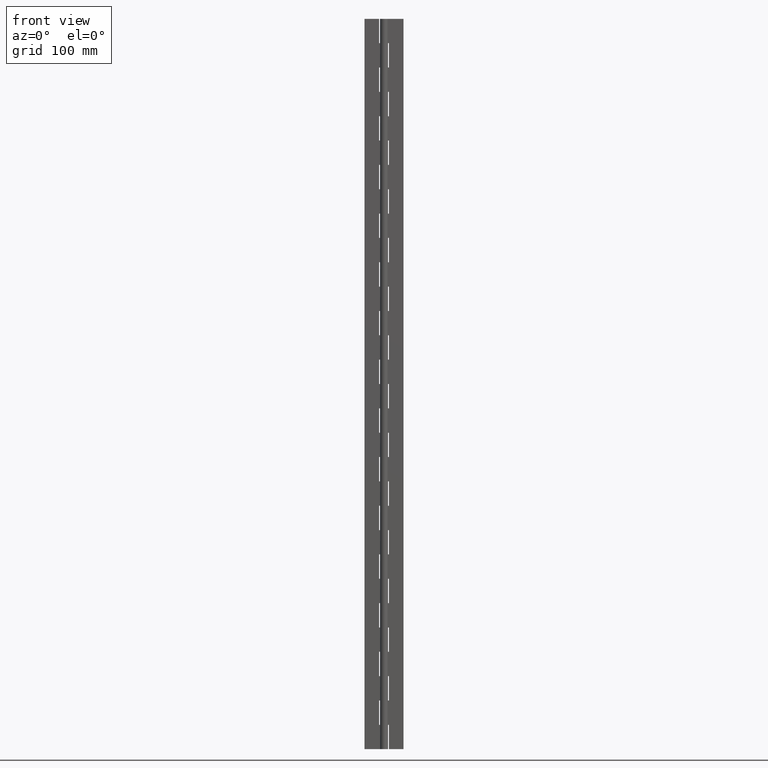
[diagram: clean part render]
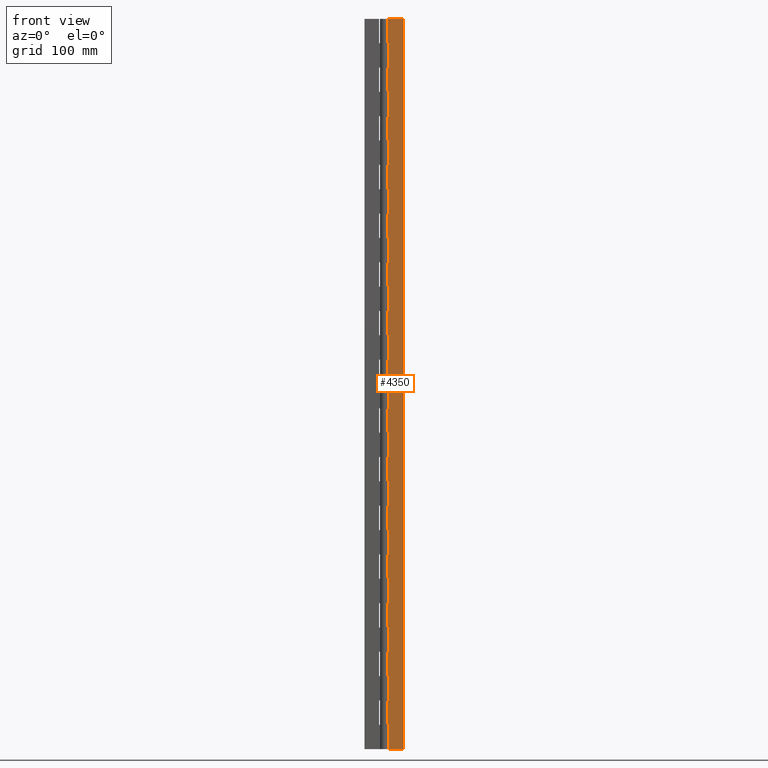
[diagram: same view with one face highlighted and labeled with its STEP entity id]
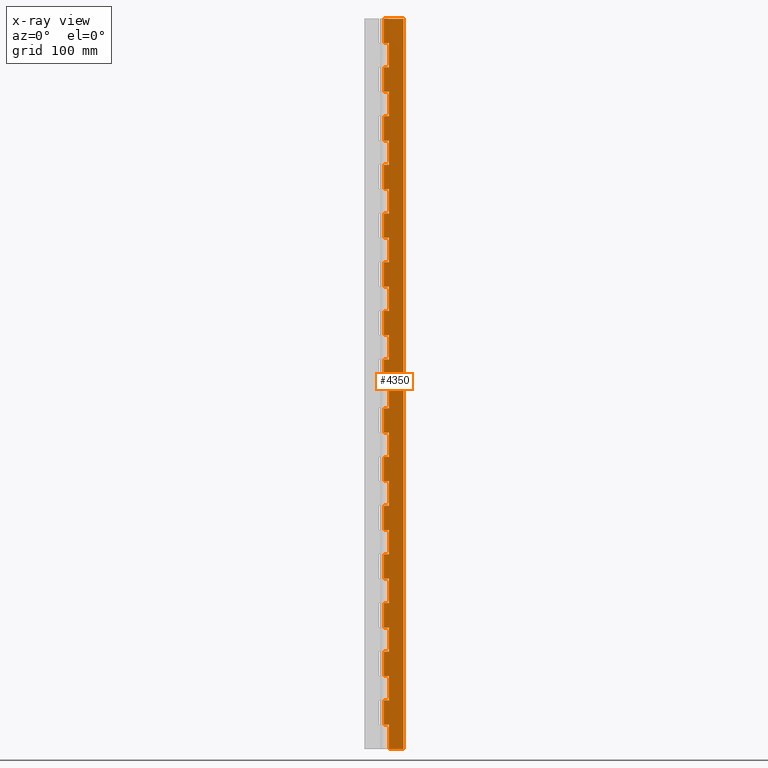
[diagram: x-ray of the same camera — body ghosted, the highlighted face saturated]
A machine part, front view. The second image highlights one B-rep face of the part: STEP entity #4350.
The next image is the same camera in x-ray: the body ghosted, the highlighted face saturated — about 0% of this face is hidden behind the body in this view.
In plain terms, the highlighted face is a freeform B-spline surface patch.
Its self-contained STEP definition (entity closure, byte-faithful):
#300=CARTESIAN_POINT('',(4.0,1.750000000000140,20.000021999999952));
#301=VERTEX_POINT('',#300);
#316=CARTESIAN_POINT('',(4.0,1.750000000000115,0.0));
#317=VERTEX_POINT('',#316);
#323=CARTESIAN_POINT('',(4.0,1.750000000000140,20.000021999999952));
#324=CARTESIAN_POINT('',(4.0,1.750000000000115,0.0));
#325=QUASI_UNIFORM_CURVE('',1,(#323,#324),.UNSPECIFIED.,.F.,.U.);
#326=EDGE_CURVE('',#301,#317,#325,.T.);
#338=CARTESIAN_POINT('',(-2.143061E-016,1.750000000000000,20.000021999999952));
#339=VERTEX_POINT('',#338);
#393=CARTESIAN_POINT('',(-2.143061E-016,1.750000000000000,20.000021999999952));
#394=CARTESIAN_POINT('',(4.0,1.750000000000140,20.000021999999952));
#395=QUASI_UNIFORM_CURVE('',1,(#393,#394),.UNSPECIFIED.,.F.,.U.);
#396=EDGE_CURVE('',#339,#301,#395,.T.);
#406=CARTESIAN_POINT('',(4.0,1.750000000000140,60.000022000000001));
#407=VERTEX_POINT('',#406);
#422=CARTESIAN_POINT('',(4.0,1.750000000000140,40.000022000000101));
#423=VERTEX_POINT('',#422);
#429=CARTESIAN_POINT('',(4.0,1.750000000000140,60.000022000000001));
#430=CARTESIAN_POINT('',(4.0,1.750000000000140,40.000022000000101));
#431=QUASI_UNIFORM_CURVE('',1,(#429,#430),.UNSPECIFIED.,.F.,.U.);
#432=EDGE_CURVE('',#407,#423,#431,.T.);
#444=CARTESIAN_POINT('',(-2.143061E-016,1.750000000000000,60.000022000000001));
#445=VERTEX_POINT('',#444);
#499=CARTESIAN_POINT('',(-2.143061E-016,1.750000000000000,60.000022000000001));
#500=CARTESIAN_POINT('',(4.0,1.750000000000140,60.000022000000001));
#501=QUASI_UNIFORM_CURVE('',1,(#499,#500),.UNSPECIFIED.,.F.,.U.);
#502=EDGE_CURVE('',#445,#407,#501,.T.);
#548=CARTESIAN_POINT('',(-2.143061E-016,1.750000000000000,40.000022000000101));
#549=VERTEX_POINT('',#548);
#569=CARTESIAN_POINT('',(4.0,1.750000000000140,40.000022000000101));
#570=CARTESIAN_POINT('',(-2.143061E-016,1.750000000000000,40.000022000000101));
#571=QUASI_UNIFORM_CURVE('',1,(#569,#570),.UNSPECIFIED.,.F.,.U.);
#572=EDGE_CURVE('',#423,#549,#571,.T.);
#582=CARTESIAN_POINT('',(4.0,1.750000000000140,100.000022000000000));
#583=VERTEX_POINT('',#582);
#598=CARTESIAN_POINT('',(4.0,1.750000000000140,80.000022000000101));
#599=VERTEX_POINT('',#598);
#605=CARTESIAN_POINT('',(4.0,1.750000000000140,100.000022000000000));
#606=CARTESIAN_POINT('',(4.0,1.750000000000140,80.000022000000101));
#607=QUASI_UNIFORM_CURVE('',1,(#605,#606),.UNSPECIFIED.,.F.,.U.);
#608=EDGE_CURVE('',#583,#599,#607,.T.);
#620=CARTESIAN_POINT('',(-2.143061E-016,1.750000000000000,100.000022000000000));
#621=VERTEX_POINT('',#620);
#675=CARTESIAN_POINT('',(-2.143061E-016,1.750000000000000,100.000022000000000));
#676=CARTESIAN_POINT('',(4.0,1.750000000000140,100.000022000000000));
#677=QUASI_UNIFORM_CURVE('',1,(#675,#676),.UNSPECIFIED.,.F.,.U.);
#678=EDGE_CURVE('',#621,#583,#677,.T.);
#724=CARTESIAN_POINT('',(-2.143061E-016,1.750000000000000,80.000022000000101));
#725=VERTEX_POINT('',#724);
#745=CARTESIAN_POINT('',(4.0,1.750000000000140,80.000022000000101));
#746=CARTESIAN_POINT('',(-2.143061E-016,1.750000000000000,80.000022000000101));
#747=QUASI_UNIFORM_CURVE('',1,(#745,#746),.UNSPECIFIED.,.F.,.U.);
#748=EDGE_CURVE('',#599,#725,#747,.T.);
#758=CARTESIAN_POINT('',(4.0,1.750000000000140,140.000022000000000));
#759=VERTEX_POINT('',#758);
#774=CARTESIAN_POINT('',(4.0,1.750000000000140,120.000022000000000));
#775=VERTEX_POINT('',#774);
#781=CARTESIAN_POINT('',(4.0,1.750000000000140,140.000022000000000));
#782=CARTESIAN_POINT('',(4.0,1.750000000000140,120.000022000000000));
#783=QUASI_UNIFORM_CURVE('',1,(#781,#782),.UNSPECIFIED.,.F.,.U.);
#784=EDGE_CURVE('',#759,#775,#783,.T.);
#796=CARTESIAN_POINT('',(-2.143061E-016,1.750000000000000,140.000022000000000));
#797=VERTEX_POINT('',#796);
#851=CARTESIAN_POINT('',(-2.143061E-016,1.750000000000000,140.000022000000000));
#852=CARTESIAN_POINT('',(4.0,1.750000000000140,140.000022000000000));
#853=QUASI_UNIFORM_CURVE('',1,(#851,#852),.UNSPECIFIED.,.F.,.U.);
#854=EDGE_CURVE('',#797,#759,#853,.T.);
#900=CARTESIAN_POINT('',(-2.143061E-016,1.750000000000000,120.000022000000200));
#901=VERTEX_POINT('',#900);
#921=CARTESIAN_POINT('',(4.0,1.750000000000140,120.000022000000000));
#922=CARTESIAN_POINT('',(-2.143061E-016,1.750000000000000,120.000022000000200));
#923=QUASI_UNIFORM_CURVE('',1,(#921,#922),.UNSPECIFIED.,.F.,.U.);
#924=EDGE_CURVE('',#775,#901,#923,.T.);
#934=CARTESIAN_POINT('',(4.0,1.750000000000140,180.000022000000000));
#935=VERTEX_POINT('',#934);
#950=CARTESIAN_POINT('',(4.0,1.750000000000140,160.000022000000000));
#951=VERTEX_POINT('',#950);
#957=CARTESIAN_POINT('',(4.0,1.750000000000140,180.000022000000000));
#958=CARTESIAN_POINT('',(4.0,1.750000000000140,160.000022000000000));
#959=QUASI_UNIFORM_CURVE('',1,(#957,#958),.UNSPECIFIED.,.F.,.U.);
#960=EDGE_CURVE('',#935,#951,#959,.T.);
#972=CARTESIAN_POINT('',(-2.143061E-016,1.750000000000000,180.000022000000000));
#973=VERTEX_POINT('',#972);
#1027=CARTESIAN_POINT('',(-2.143061E-016,1.750000000000000,180.000022000000000));
#1028=CARTESIAN_POINT('',(4.0,1.750000000000140,180.000022000000000));
#1029=QUASI_UNIFORM_CURVE('',1,(#1027,#1028),.UNSPECIFIED.,.F.,.U.);
#1030=EDGE_CURVE('',#973,#935,#1029,.T.);
#1076=CARTESIAN_POINT('',(-2.143061E-016,1.750000000000000,160.000022000000000));
#1077=VERTEX_POINT('',#1076);
#1097=CARTESIAN_POINT('',(4.0,1.750000000000140,160.000022000000000));
#1098=CARTESIAN_POINT('',(-2.143061E-016,1.750000000000000,160.000022000000000));
#1099=QUASI_UNIFORM_CURVE('',1,(#1097,#1098),.UNSPECIFIED.,.F.,.U.);
#1100=EDGE_CURVE('',#951,#1077,#1099,.T.);
#1110=CARTESIAN_POINT('',(4.0,1.750000000000140,220.000022000000000));
#1111=VERTEX_POINT('',#1110);
#1126=CARTESIAN_POINT('',(4.0,1.750000000000140,200.000022000000000));
#1127=VERTEX_POINT('',#1126);
#1133=CARTESIAN_POINT('',(4.0,1.750000000000140,220.000022000000000));
#1134=CARTESIAN_POINT('',(4.0,1.750000000000140,200.000022000000000));
#1135=QUASI_UNIFORM_CURVE('',1,(#1133,#1134),.UNSPECIFIED.,.F.,.U.);
#1136=EDGE_CURVE('',#1111,#1127,#1135,.T.);
#1148=CARTESIAN_POINT('',(-2.143061E-016,1.750000000000000,220.000022000000000));
#1149=VERTEX_POINT('',#1148);
#1203=CARTESIAN_POINT('',(-2.143061E-016,1.750000000000000,220.000022000000000));
#1204=CARTESIAN_POINT('',(4.0,1.750000000000140,220.000022000000000));
#1205=QUASI_UNIFORM_CURVE('',1,(#1203,#1204),.UNSPECIFIED.,.F.,.U.);
#1206=EDGE_CURVE('',#1149,#1111,#1205,.T.);
#1252=CARTESIAN_POINT('',(-2.143061E-016,1.750000000000000,200.000022000000000));
#1253=VERTEX_POINT('',#1252);
#1273=CARTESIAN_POINT('',(4.0,1.750000000000140,200.000022000000000));
#1274=CARTESIAN_POINT('',(-2.143061E-016,1.750000000000000,200.000022000000000));
#1275=QUASI_UNIFORM_CURVE('',1,(#1273,#1274),.UNSPECIFIED.,.F.,.U.);
#1276=EDGE_CURVE('',#1127,#1253,#1275,.T.);
#1286=CARTESIAN_POINT('',(4.0,1.750000000000140,260.000022000000000));
#1287=VERTEX_POINT('',#1286);
#1302=CARTESIAN_POINT('',(4.0,1.750000000000140,240.000022000000000));
#1303=VERTEX_POINT('',#1302);
#1309=CARTESIAN_POINT('',(4.0,1.750000000000140,260.000022000000000));
#1310=CARTESIAN_POINT('',(4.0,1.750000000000140,240.000022000000000));
#1311=QUASI_UNIFORM_CURVE('',1,(#1309,#1310),.UNSPECIFIED.,.F.,.U.);
#1312=EDGE_CURVE('',#1287,#1303,#1311,.T.);
#1324=CARTESIAN_POINT('',(-2.143061E-016,1.750000000000000,260.000022000000000));
#1325=VERTEX_POINT('',#1324);
#1379=CARTESIAN_POINT('',(-2.143061E-016,1.750000000000000,260.000022000000000));
#1380=CARTESIAN_POINT('',(4.0,1.750000000000140,260.000022000000000));
#1381=QUASI_UNIFORM_CURVE('',1,(#1379,#1380),.UNSPECIFIED.,.F.,.U.);
#1382=EDGE_CURVE('',#1325,#1287,#1381,.T.);
#1428=CARTESIAN_POINT('',(-2.143061E-016,1.750000000000000,240.000022000000000));
#1429=VERTEX_POINT('',#1428);
#1449=CARTESIAN_POINT('',(4.0,1.750000000000140,240.000022000000000));
#1450=CARTESIAN_POINT('',(-2.143061E-016,1.750000000000000,240.000022000000000));
#1451=QUASI_UNIFORM_CURVE('',1,(#1449,#1450),.UNSPECIFIED.,.F.,.U.);
#1452=EDGE_CURVE('',#1303,#1429,#1451,.T.);
#1462=CARTESIAN_POINT('',(4.0,1.750000000000140,300.000022000000000));
#1463=VERTEX_POINT('',#1462);
#1478=CARTESIAN_POINT('',(4.0,1.750000000000140,280.000022000000000));
#1479=VERTEX_POINT('',#1478);
#1485=CARTESIAN_POINT('',(4.0,1.750000000000140,300.000022000000000));
#1486=CARTESIAN_POINT('',(4.0,1.750000000000140,280.000022000000000));
#1487=QUASI_UNIFORM_CURVE('',1,(#1485,#1486),.UNSPECIFIED.,.F.,.U.);
#1488=EDGE_CURVE('',#1463,#1479,#1487,.T.);
#1500=CARTESIAN_POINT('',(-2.143061E-016,1.750000000000000,300.000022000000000));
#1501=VERTEX_POINT('',#1500);
#1555=CARTESIAN_POINT('',(-2.143061E-016,1.750000000000000,300.000022000000000));
#1556=CARTESIAN_POINT('',(4.0,1.750000000000140,300.000022000000000));
#1557=QUASI_UNIFORM_CURVE('',1,(#1555,#1556),.UNSPECIFIED.,.F.,.U.);
#1558=EDGE_CURVE('',#1501,#1463,#1557,.T.);
#1604=CARTESIAN_POINT('',(-2.143061E-016,1.750000000000000,280.000022000000000));
#1605=VERTEX_POINT('',#1604);
#1625=CARTESIAN_POINT('',(4.0,1.750000000000140,280.000022000000000));
#1626=CARTESIAN_POINT('',(-2.143061E-016,1.750000000000000,280.000022000000000));
#1627=QUASI_UNIFORM_CURVE('',1,(#1625,#1626),.UNSPECIFIED.,.F.,.U.);
#1628=EDGE_CURVE('',#1479,#1605,#1627,.T.);
#1638=CARTESIAN_POINT('',(4.0,1.750000000000140,340.000022000000000));
#1639=VERTEX_POINT('',#1638);
#1654=CARTESIAN_POINT('',(4.0,1.750000000000140,320.000022000000000));
#1655=VERTEX_POINT('',#1654);
#1661=CARTESIAN_POINT('',(4.0,1.750000000000140,340.000022000000000));
#1662=CARTESIAN_POINT('',(4.0,1.750000000000140,320.000022000000000));
#1663=QUASI_UNIFORM_CURVE('',1,(#1661,#1662),.UNSPECIFIED.,.F.,.U.);
#1664=EDGE_CURVE('',#1639,#1655,#1663,.T.);
#1676=CARTESIAN_POINT('',(-2.143061E-016,1.750000000000000,340.000022000000000));
#1677=VERTEX_POINT('',#1676);
#1731=CARTESIAN_POINT('',(-2.143061E-016,1.750000000000000,340.000022000000000));
#1732=CARTESIAN_POINT('',(4.0,1.750000000000140,340.000022000000000));
#1733=QUASI_UNIFORM_CURVE('',1,(#1731,#1732),.UNSPECIFIED.,.F.,.U.);
#1734=EDGE_CURVE('',#1677,#1639,#1733,.T.);
#1780=CARTESIAN_POINT('',(-2.143061E-016,1.750000000000000,320.000022000000000));
#1781=VERTEX_POINT('',#1780);
#1801=CARTESIAN_POINT('',(4.0,1.750000000000140,320.000022000000000));
#1802=CARTESIAN_POINT('',(-2.143061E-016,1.750000000000000,320.000022000000000));
#1803=QUASI_UNIFORM_CURVE('',1,(#1801,#1802),.UNSPECIFIED.,.F.,.U.);
#1804=EDGE_CURVE('',#1655,#1781,#1803,.T.);
#1814=CARTESIAN_POINT('',(4.0,1.750000000000140,380.000022000000000));
#1815=VERTEX_POINT('',#1814);
#1830=CARTESIAN_POINT('',(4.0,1.750000000000140,360.000022000000000));
#1831=VERTEX_POINT('',#1830);
#1837=CARTESIAN_POINT('',(4.0,1.750000000000140,380.000022000000000));
#1838=CARTESIAN_POINT('',(4.0,1.750000000000140,360.000022000000000));
#1839=QUASI_UNIFORM_CURVE('',1,(#1837,#1838),.UNSPECIFIED.,.F.,.U.);
#1840=EDGE_CURVE('',#1815,#1831,#1839,.T.);
#1852=CARTESIAN_POINT('',(-2.143061E-016,1.750000000000000,380.000022000000000));
#1853=VERTEX_POINT('',#1852);
#1907=CARTESIAN_POINT('',(-2.143061E-016,1.750000000000000,380.000022000000000));
#1908=CARTESIAN_POINT('',(4.0,1.750000000000140,380.000022000000000));
#1909=QUASI_UNIFORM_CURVE('',1,(#1907,#1908),.UNSPECIFIED.,.F.,.U.);
#1910=EDGE_CURVE('',#1853,#1815,#1909,.T.);
#1956=CARTESIAN_POINT('',(-2.143061E-016,1.750000000000000,360.000022000000000));
#1957=VERTEX_POINT('',#1956);
#1977=CARTESIAN_POINT('',(4.0,1.750000000000140,360.000022000000000));
#1978=CARTESIAN_POINT('',(-2.143061E-016,1.750000000000000,360.000022000000000));
#1979=QUASI_UNIFORM_CURVE('',1,(#1977,#1978),.UNSPECIFIED.,.F.,.U.);
#1980=EDGE_CURVE('',#1831,#1957,#1979,.T.);
#1990=CARTESIAN_POINT('',(4.0,1.750000000000140,420.000021999999890));
#1991=VERTEX_POINT('',#1990);
#2006=CARTESIAN_POINT('',(4.0,1.750000000000140,400.000022000000000));
#2007=VERTEX_POINT('',#2006);
#2013=CARTESIAN_POINT('',(4.0,1.750000000000140,420.000021999999890));
#2014=CARTESIAN_POINT('',(4.0,1.750000000000140,400.000022000000000));
#2015=QUASI_UNIFORM_CURVE('',1,(#2013,#2014),.UNSPECIFIED.,.F.,.U.);
#2016=EDGE_CURVE('',#1991,#2007,#2015,.T.);
#2028=CARTESIAN_POINT('',(-2.143061E-016,1.750000000000000,420.000021999999890));
#2029=VERTEX_POINT('',#2028);
#2083=CARTESIAN_POINT('',(-2.143061E-016,1.750000000000000,420.000021999999890));
#2084=CARTESIAN_POINT('',(4.0,1.750000000000140,420.000021999999890));
#2085=QUASI_UNIFORM_CURVE('',1,(#2083,#2084),.UNSPECIFIED.,.F.,.U.);
#2086=EDGE_CURVE('',#2029,#1991,#2085,.T.);
#2132=CARTESIAN_POINT('',(-2.143061E-016,1.750000000000000,400.000022000000000));
#2133=VERTEX_POINT('',#2132);
#2153=CARTESIAN_POINT('',(4.0,1.750000000000140,400.000022000000000));
#2154=CARTESIAN_POINT('',(-2.143061E-016,1.750000000000000,400.000022000000000));
#2155=QUASI_UNIFORM_CURVE('',1,(#2153,#2154),.UNSPECIFIED.,.F.,.U.);
#2156=EDGE_CURVE('',#2007,#2133,#2155,.T.);
#2166=CARTESIAN_POINT('',(4.0,1.750000000000140,460.000022000000000));
#2167=VERTEX_POINT('',#2166);
#2182=CARTESIAN_POINT('',(4.0,1.750000000000140,440.000022000000000));
#2183=VERTEX_POINT('',#2182);
#2189=CARTESIAN_POINT('',(4.0,1.750000000000140,460.000022000000000));
#2190=CARTESIAN_POINT('',(4.0,1.750000000000140,440.000022000000000));
#2191=QUASI_UNIFORM_CURVE('',1,(#2189,#2190),.UNSPECIFIED.,.F.,.U.);
#2192=EDGE_CURVE('',#2167,#2183,#2191,.T.);
#2204=CARTESIAN_POINT('',(-2.143061E-016,1.750000000000000,460.000022000000000));
#2205=VERTEX_POINT('',#2204);
#2259=CARTESIAN_POINT('',(-2.143061E-016,1.750000000000000,460.000022000000000));
#2260=CARTESIAN_POINT('',(4.0,1.750000000000140,460.000022000000000));
#2261=QUASI_UNIFORM_CURVE('',1,(#2259,#2260),.UNSPECIFIED.,.F.,.U.);
#2262=EDGE_CURVE('',#2205,#2167,#2261,.T.);
#2308=CARTESIAN_POINT('',(-2.143061E-016,1.750000000000000,440.000022000000000));
#2309=VERTEX_POINT('',#2308);
#2329=CARTESIAN_POINT('',(4.0,1.750000000000140,440.000022000000000));
#2330=CARTESIAN_POINT('',(-2.143061E-016,1.750000000000000,440.000022000000000));
#2331=QUASI_UNIFORM_CURVE('',1,(#2329,#2330),.UNSPECIFIED.,.F.,.U.);
#2332=EDGE_CURVE('',#2183,#2309,#2331,.T.);
#2342=CARTESIAN_POINT('',(4.0,1.750000000000140,500.000022000000110));
#2343=VERTEX_POINT('',#2342);
#2358=CARTESIAN_POINT('',(4.0,1.750000000000140,480.000022000000000));
#2359=VERTEX_POINT('',#2358);
#2365=CARTESIAN_POINT('',(4.0,1.750000000000140,500.000022000000110));
#2366=CARTESIAN_POINT('',(4.0,1.750000000000140,480.000022000000000));
#2367=QUASI_UNIFORM_CURVE('',1,(#2365,#2366),.UNSPECIFIED.,.F.,.U.);
#2368=EDGE_CURVE('',#2343,#2359,#2367,.T.);
#2380=CARTESIAN_POINT('',(-2.143061E-016,1.750000000000000,500.000022000000110));
#2381=VERTEX_POINT('',#2380);
#2435=CARTESIAN_POINT('',(-2.143061E-016,1.750000000000000,500.000022000000110));
#2436=CARTESIAN_POINT('',(4.0,1.750000000000140,500.000022000000110));
#2437=QUASI_UNIFORM_CURVE('',1,(#2435,#2436),.UNSPECIFIED.,.F.,.U.);
#2438=EDGE_CURVE('',#2381,#2343,#2437,.T.);
#2484=CARTESIAN_POINT('',(-2.143061E-016,1.750000000000000,480.000022000000000));
#2485=VERTEX_POINT('',#2484);
#2505=CARTESIAN_POINT('',(4.0,1.750000000000140,480.000022000000000));
#2506=CARTESIAN_POINT('',(-2.143061E-016,1.750000000000000,480.000022000000000));
#2507=QUASI_UNIFORM_CURVE('',1,(#2505,#2506),.UNSPECIFIED.,.F.,.U.);
#2508=EDGE_CURVE('',#2359,#2485,#2507,.T.);
#2518=CARTESIAN_POINT('',(4.0,1.750000000000140,540.000021999999940));
#2519=VERTEX_POINT('',#2518);
#2534=CARTESIAN_POINT('',(4.0,1.750000000000140,520.000021999999940));
#2535=VERTEX_POINT('',#2534);
#2541=CARTESIAN_POINT('',(4.0,1.750000000000140,540.000021999999940));
#2542=CARTESIAN_POINT('',(4.0,1.750000000000140,520.000021999999940));
#2543=QUASI_UNIFORM_CURVE('',1,(#2541,#2542),.UNSPECIFIED.,.F.,.U.);
#2544=EDGE_CURVE('',#2519,#2535,#2543,.T.);
#2556=CARTESIAN_POINT('',(-2.143061E-016,1.750000000000000,540.000021999999940));
#2557=VERTEX_POINT('',#2556);
#2611=CARTESIAN_POINT('',(-2.143061E-016,1.750000000000000,540.000021999999940));
#2612=CARTESIAN_POINT('',(4.0,1.750000000000140,540.000021999999940));
#2613=QUASI_UNIFORM_CURVE('',1,(#2611,#2612),.UNSPECIFIED.,.F.,.U.);
#2614=EDGE_CURVE('',#2557,#2519,#2613,.T.);
#2660=CARTESIAN_POINT('',(-2.143061E-016,1.750000000000000,520.000021999999940));
#2661=VERTEX_POINT('',#2660);
#2681=CARTESIAN_POINT('',(4.0,1.750000000000140,520.000021999999940));
#2682=CARTESIAN_POINT('',(-2.143061E-016,1.750000000000000,520.000021999999940));
#2683=QUASI_UNIFORM_CURVE('',1,(#2681,#2682),.UNSPECIFIED.,.F.,.U.);
#2684=EDGE_CURVE('',#2535,#2661,#2683,.T.);
#2694=CARTESIAN_POINT('',(4.0,1.750000000000140,580.000022000000060));
#2695=VERTEX_POINT('',#2694);
#2710=CARTESIAN_POINT('',(4.0,1.750000000000140,560.000021999999940));
#2711=VERTEX_POINT('',#2710);
#2717=CARTESIAN_POINT('',(4.0,1.750000000000140,580.000022000000060));
#2718=CARTESIAN_POINT('',(4.0,1.750000000000140,560.000021999999940));
#2719=QUASI_UNIFORM_CURVE('',1,(#2717,#2718),.UNSPECIFIED.,.F.,.U.);
#2720=EDGE_CURVE('',#2695,#2711,#2719,.T.);
#2732=CARTESIAN_POINT('',(-2.143061E-016,1.750000000000000,580.000022000000060));
#2733=VERTEX_POINT('',#2732);
#2787=CARTESIAN_POINT('',(-2.143061E-016,1.750000000000000,580.000022000000060));
#2788=CARTESIAN_POINT('',(4.0,1.750000000000140,580.000022000000060));
#2789=QUASI_UNIFORM_CURVE('',1,(#2787,#2788),.UNSPECIFIED.,.F.,.U.);
#2790=EDGE_CURVE('',#2733,#2695,#2789,.T.);
#2836=CARTESIAN_POINT('',(-2.143061E-016,1.750000000000000,560.000021999999940));
#2837=VERTEX_POINT('',#2836);
#2857=CARTESIAN_POINT('',(4.0,1.750000000000140,560.000021999999940));
#2858=CARTESIAN_POINT('',(-2.143061E-016,1.750000000000000,560.000021999999940));
#2859=QUASI_UNIFORM_CURVE('',1,(#2857,#2858),.UNSPECIFIED.,.F.,.U.);
#2860=EDGE_CURVE('',#2711,#2837,#2859,.T.);
#2907=CARTESIAN_POINT('',(-2.143061E-016,1.750000000000115,600.000022000000060));
#2908=VERTEX_POINT('',#2907);
#2928=CARTESIAN_POINT('',(16.0,1.750000000000115,600.000022000000060));
#2929=VERTEX_POINT('',#2928);
#2930=CARTESIAN_POINT('',(16.0,1.750000000000115,600.000022000000060));
#2931=CARTESIAN_POINT('',(-2.143061E-016,1.750000000000115,600.000022000000060));
#2932=QUASI_UNIFORM_CURVE('',1,(#2930,#2931),.UNSPECIFIED.,.F.,.U.);
#2933=EDGE_CURVE('',#2929,#2908,#2932,.T.);
#2950=CARTESIAN_POINT('',(16.0,1.750000000000115,0.0));
#2951=VERTEX_POINT('',#2950);
#2963=CARTESIAN_POINT('',(16.0,1.750000000000115,600.000022000000060));
#2964=CARTESIAN_POINT('',(16.0,1.750000000000115,0.0));
#2965=QUASI_UNIFORM_CURVE('',1,(#2963,#2964),.UNSPECIFIED.,.F.,.U.);
#2966=EDGE_CURVE('',#2929,#2951,#2965,.T.);
#3048=CARTESIAN_POINT('',(-2.143061E-016,1.750000000000115,600.000022000000060));
#3049=CARTESIAN_POINT('',(-2.143061E-016,1.750000000000000,580.000022000000060));
#3050=QUASI_UNIFORM_CURVE('',1,(#3048,#3049),.UNSPECIFIED.,.F.,.U.);
#3051=EDGE_CURVE('',#2908,#2733,#3050,.T.);
#3134=CARTESIAN_POINT('',(-2.143061E-016,1.750000000000000,560.000021999999940));
#3135=CARTESIAN_POINT('',(-2.143061E-016,1.750000000000000,540.000021999999940));
#3136=QUASI_UNIFORM_CURVE('',1,(#3134,#3135),.UNSPECIFIED.,.F.,.U.);
#3137=EDGE_CURVE('',#2837,#2557,#3136,.T.);
#3220=CARTESIAN_POINT('',(-2.143061E-016,1.750000000000000,520.000021999999940));
#3221=CARTESIAN_POINT('',(-2.143061E-016,1.750000000000000,500.000022000000110));
#3222=QUASI_UNIFORM_CURVE('',1,(#3220,#3221),.UNSPECIFIED.,.F.,.U.);
#3223=EDGE_CURVE('',#2661,#2381,#3222,.T.);
#3306=CARTESIAN_POINT('',(-2.143061E-016,1.750000000000000,480.000022000000000));
#3307=CARTESIAN_POINT('',(-2.143061E-016,1.750000000000000,460.000022000000000));
#3308=QUASI_UNIFORM_CURVE('',1,(#3306,#3307),.UNSPECIFIED.,.F.,.U.);
#3309=EDGE_CURVE('',#2485,#2205,#3308,.T.);
#3392=CARTESIAN_POINT('',(-2.143061E-016,1.750000000000000,440.000022000000000));
#3393=CARTESIAN_POINT('',(-2.143061E-016,1.750000000000000,420.000021999999890));
#3394=QUASI_UNIFORM_CURVE('',1,(#3392,#3393),.UNSPECIFIED.,.F.,.U.);
#3395=EDGE_CURVE('',#2309,#2029,#3394,.T.);
#3478=CARTESIAN_POINT('',(-2.143061E-016,1.750000000000000,400.000022000000000));
#3479=CARTESIAN_POINT('',(-2.143061E-016,1.750000000000000,380.000022000000000));
#3480=QUASI_UNIFORM_CURVE('',1,(#3478,#3479),.UNSPECIFIED.,.F.,.U.);
#3481=EDGE_CURVE('',#2133,#1853,#3480,.T.);
#3564=CARTESIAN_POINT('',(-2.143061E-016,1.750000000000000,360.000022000000000));
#3565=CARTESIAN_POINT('',(-2.143061E-016,1.750000000000000,340.000022000000000));
#3566=QUASI_UNIFORM_CURVE('',1,(#3564,#3565),.UNSPECIFIED.,.F.,.U.);
#3567=EDGE_CURVE('',#1957,#1677,#3566,.T.);
#3650=CARTESIAN_POINT('',(-2.143061E-016,1.750000000000000,320.000022000000000));
#3651=CARTESIAN_POINT('',(-2.143061E-016,1.750000000000000,300.000022000000000));
#3652=QUASI_UNIFORM_CURVE('',1,(#3650,#3651),.UNSPECIFIED.,.F.,.U.);
#3653=EDGE_CURVE('',#1781,#1501,#3652,.T.);
#3736=CARTESIAN_POINT('',(-2.143061E-016,1.750000000000000,280.000022000000000));
#3737=CARTESIAN_POINT('',(-2.143061E-016,1.750000000000000,260.000022000000000));
#3738=QUASI_UNIFORM_CURVE('',1,(#3736,#3737),.UNSPECIFIED.,.F.,.U.);
#3739=EDGE_CURVE('',#1605,#1325,#3738,.T.);
#3822=CARTESIAN_POINT('',(-2.143061E-016,1.750000000000000,240.000022000000000));
#3823=CARTESIAN_POINT('',(-2.143061E-016,1.750000000000000,220.000022000000000));
#3824=QUASI_UNIFORM_CURVE('',1,(#3822,#3823),.UNSPECIFIED.,.F.,.U.);
#3825=EDGE_CURVE('',#1429,#1149,#3824,.T.);
#3908=CARTESIAN_POINT('',(-2.143061E-016,1.750000000000000,200.000022000000000));
#3909=CARTESIAN_POINT('',(-2.143061E-016,1.750000000000000,180.000022000000000));
#3910=QUASI_UNIFORM_CURVE('',1,(#3908,#3909),.UNSPECIFIED.,.F.,.U.);
#3911=EDGE_CURVE('',#1253,#973,#3910,.T.);
#3994=CARTESIAN_POINT('',(-2.143061E-016,1.750000000000000,160.000022000000000));
#3995=CARTESIAN_POINT('',(-2.143061E-016,1.750000000000000,140.000022000000000));
#3996=QUASI_UNIFORM_CURVE('',1,(#3994,#3995),.UNSPECIFIED.,.F.,.U.);
#3997=EDGE_CURVE('',#1077,#797,#3996,.T.);
#4080=CARTESIAN_POINT('',(-2.143061E-016,1.750000000000000,120.000022000000200));
#4081=CARTESIAN_POINT('',(-2.143061E-016,1.750000000000000,100.000022000000000));
#4082=QUASI_UNIFORM_CURVE('',1,(#4080,#4081),.UNSPECIFIED.,.F.,.U.);
#4083=EDGE_CURVE('',#901,#621,#4082,.T.);
#4166=CARTESIAN_POINT('',(-2.143061E-016,1.750000000000000,80.000022000000101));
#4167=CARTESIAN_POINT('',(-2.143061E-016,1.750000000000000,60.000022000000001));
#4168=QUASI_UNIFORM_CURVE('',1,(#4166,#4167),.UNSPECIFIED.,.F.,.U.);
#4169=EDGE_CURVE('',#725,#445,#4168,.T.);
#4187=CARTESIAN_POINT('',(16.0,1.750000000000115,0.0));
#4188=CARTESIAN_POINT('',(4.0,1.750000000000115,0.0));
#4189=QUASI_UNIFORM_CURVE('',1,(#4187,#4188),.UNSPECIFIED.,.F.,.U.);
#4190=EDGE_CURVE('',#2951,#317,#4189,.T.);
#4272=CARTESIAN_POINT('',(-2.143061E-016,1.750000000000000,40.000022000000101));
#4273=CARTESIAN_POINT('',(-2.143061E-016,1.750000000000000,20.000021999999952));
#4274=QUASI_UNIFORM_CURVE('',1,(#4272,#4273),.UNSPECIFIED.,.F.,.U.);
#4275=EDGE_CURVE('',#549,#339,#4274,.T.);
#4281=CARTESIAN_POINT('',(-0.799199968988895,1.750000000000115,629.969999406500050));
#4282=CARTESIAN_POINT('',(-0.799199968988895,1.750000000000115,-29.970014957427448));
#4283=CARTESIAN_POINT('',(16.799200398142339,1.750000000000115,629.969999406500050));
#4284=CARTESIAN_POINT('',(16.799200398142339,1.750000000000115,-29.970014957427448));
#4285=B_SPLINE_SURFACE_WITH_KNOTS('',1,1,((#4281,#4283),(#4282,#4284)),.UNSPECIFIED.,.F.,.F.,.U.,(2,2),(2,2),(0.0,659.940014363927500),(0.0,17.598400367131230),.UNSPECIFIED.);
#4286=ORIENTED_EDGE('',*,*,#396,.T.);
#4287=ORIENTED_EDGE('',*,*,#326,.T.);
#4288=ORIENTED_EDGE('',*,*,#4190,.F.);
#4289=ORIENTED_EDGE('',*,*,#2966,.F.);
#4290=ORIENTED_EDGE('',*,*,#2933,.T.);
#4291=ORIENTED_EDGE('',*,*,#3051,.T.);
#4292=ORIENTED_EDGE('',*,*,#2790,.T.);
#4293=ORIENTED_EDGE('',*,*,#2720,.T.);
#4294=ORIENTED_EDGE('',*,*,#2860,.T.);
#4295=ORIENTED_EDGE('',*,*,#3137,.T.);
#4296=ORIENTED_EDGE('',*,*,#2614,.T.);
#4297=ORIENTED_EDGE('',*,*,#2544,.T.);
#4298=ORIENTED_EDGE('',*,*,#2684,.T.);
#4299=ORIENTED_EDGE('',*,*,#3223,.T.);
#4300=ORIENTED_EDGE('',*,*,#2438,.T.);
#4301=ORIENTED_EDGE('',*,*,#2368,.T.);
#4302=ORIENTED_EDGE('',*,*,#2508,.T.);
#4303=ORIENTED_EDGE('',*,*,#3309,.T.);
#4304=ORIENTED_EDGE('',*,*,#2262,.T.);
#4305=ORIENTED_EDGE('',*,*,#2192,.T.);
#4306=ORIENTED_EDGE('',*,*,#2332,.T.);
#4307=ORIENTED_EDGE('',*,*,#3395,.T.);
#4308=ORIENTED_EDGE('',*,*,#2086,.T.);
#4309=ORIENTED_EDGE('',*,*,#2016,.T.);
#4310=ORIENTED_EDGE('',*,*,#2156,.T.);
#4311=ORIENTED_EDGE('',*,*,#3481,.T.);
#4312=ORIENTED_EDGE('',*,*,#1910,.T.);
#4313=ORIENTED_EDGE('',*,*,#1840,.T.);
#4314=ORIENTED_EDGE('',*,*,#1980,.T.);
#4315=ORIENTED_EDGE('',*,*,#3567,.T.);
#4316=ORIENTED_EDGE('',*,*,#1734,.T.);
#4317=ORIENTED_EDGE('',*,*,#1664,.T.);
#4318=ORIENTED_EDGE('',*,*,#1804,.T.);
#4319=ORIENTED_EDGE('',*,*,#3653,.T.);
#4320=ORIENTED_EDGE('',*,*,#1558,.T.);
#4321=ORIENTED_EDGE('',*,*,#1488,.T.);
#4322=ORIENTED_EDGE('',*,*,#1628,.T.);
#4323=ORIENTED_EDGE('',*,*,#3739,.T.);
#4324=ORIENTED_EDGE('',*,*,#1382,.T.);
#4325=ORIENTED_EDGE('',*,*,#1312,.T.);
#4326=ORIENTED_EDGE('',*,*,#1452,.T.);
#4327=ORIENTED_EDGE('',*,*,#3825,.T.);
#4328=ORIENTED_EDGE('',*,*,#1206,.T.);
#4329=ORIENTED_EDGE('',*,*,#1136,.T.);
#4330=ORIENTED_EDGE('',*,*,#1276,.T.);
#4331=ORIENTED_EDGE('',*,*,#3911,.T.);
#4332=ORIENTED_EDGE('',*,*,#1030,.T.);
#4333=ORIENTED_EDGE('',*,*,#960,.T.);
#4334=ORIENTED_EDGE('',*,*,#1100,.T.);
#4335=ORIENTED_EDGE('',*,*,#3997,.T.);
#4336=ORIENTED_EDGE('',*,*,#854,.T.);
#4337=ORIENTED_EDGE('',*,*,#784,.T.);
#4338=ORIENTED_EDGE('',*,*,#924,.T.);
#4339=ORIENTED_EDGE('',*,*,#4083,.T.);
#4340=ORIENTED_EDGE('',*,*,#678,.T.);
#4341=ORIENTED_EDGE('',*,*,#608,.T.);
#4342=ORIENTED_EDGE('',*,*,#748,.T.);
#4343=ORIENTED_EDGE('',*,*,#4169,.T.);
#4344=ORIENTED_EDGE('',*,*,#502,.T.);
#4345=ORIENTED_EDGE('',*,*,#432,.T.);
#4346=ORIENTED_EDGE('',*,*,#572,.T.);
#4347=ORIENTED_EDGE('',*,*,#4275,.T.);
#4348=EDGE_LOOP('',(#4286,#4287,#4288,#4289,#4290,#4291,#4292,#4293,#4294,#4295,#4296,#4297,#4298,#4299,#4300,#4301,#4302,#4303,#4304,#4305,#4306,#4307,#4308,#4309,#4310,#4311,#4312,#4313,#4314,#4315,#4316,#4317,#4318,#4319,#4320,#4321,#4322,#4323,#4324,#4325,#4326,#4327,#4328,#4329,#4330,#4331,#4332,#4333,#4334,#4335,#4336,#4337,#4338,#4339,#4340,#4341,#4342,#4343,#4344,#4345,#4346,#4347));
#4349=FACE_OUTER_BOUND('',#4348,.T.);
#4350=ADVANCED_FACE('',(#4349),#4285,.T.);